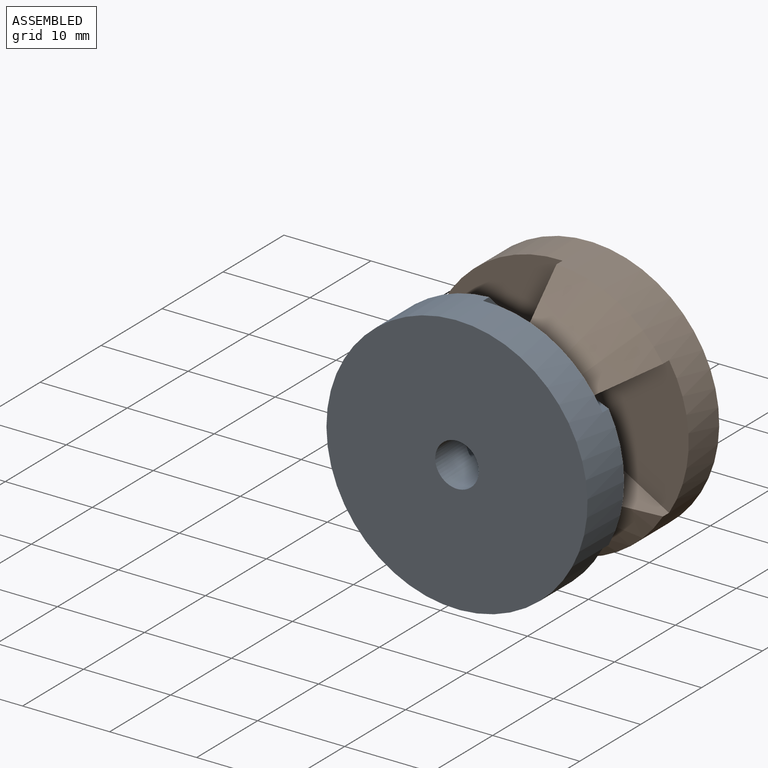
[diagram: assembled view]
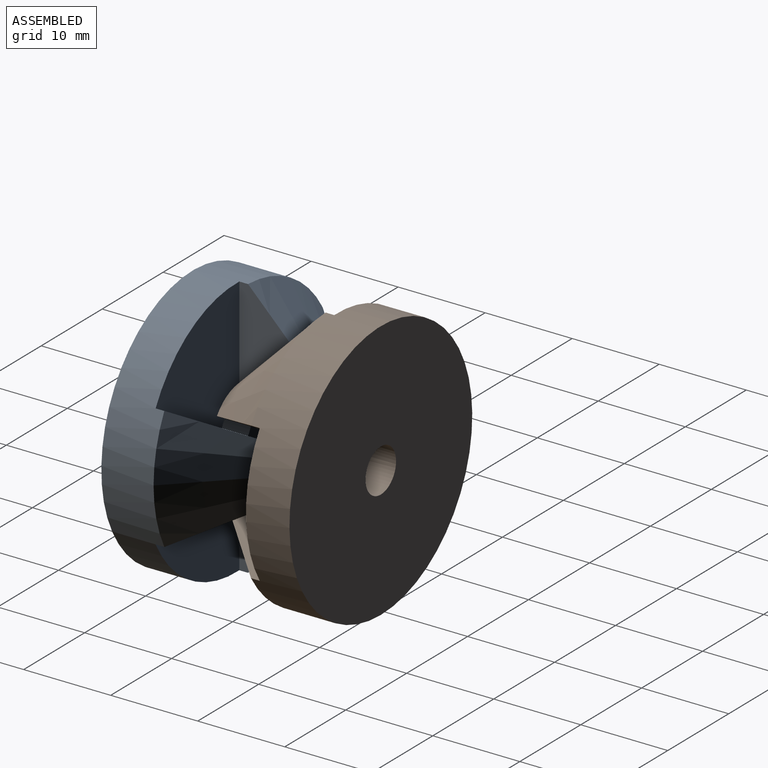
[diagram: assembled view, second angle]
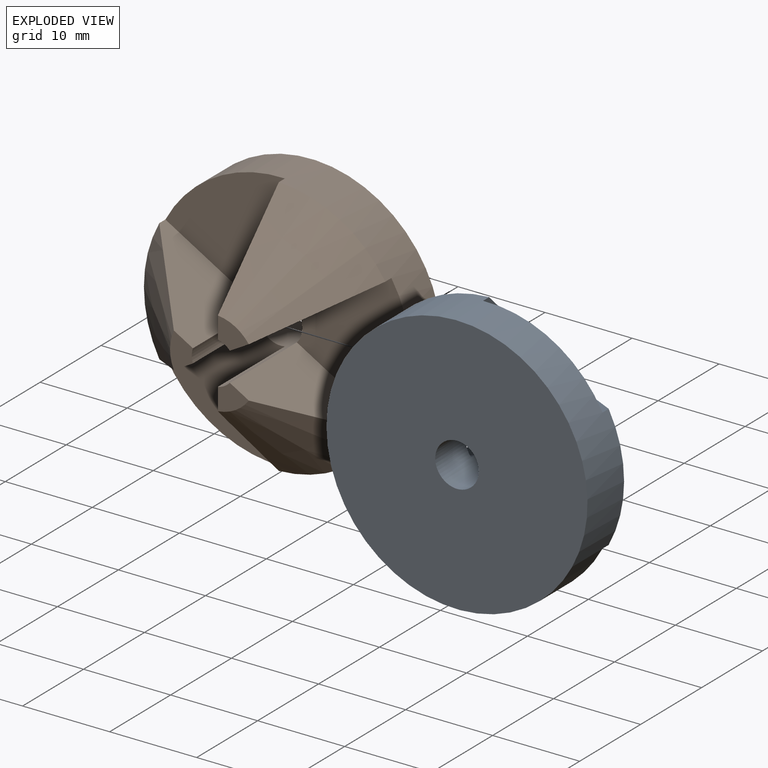
[diagram: exploded view]
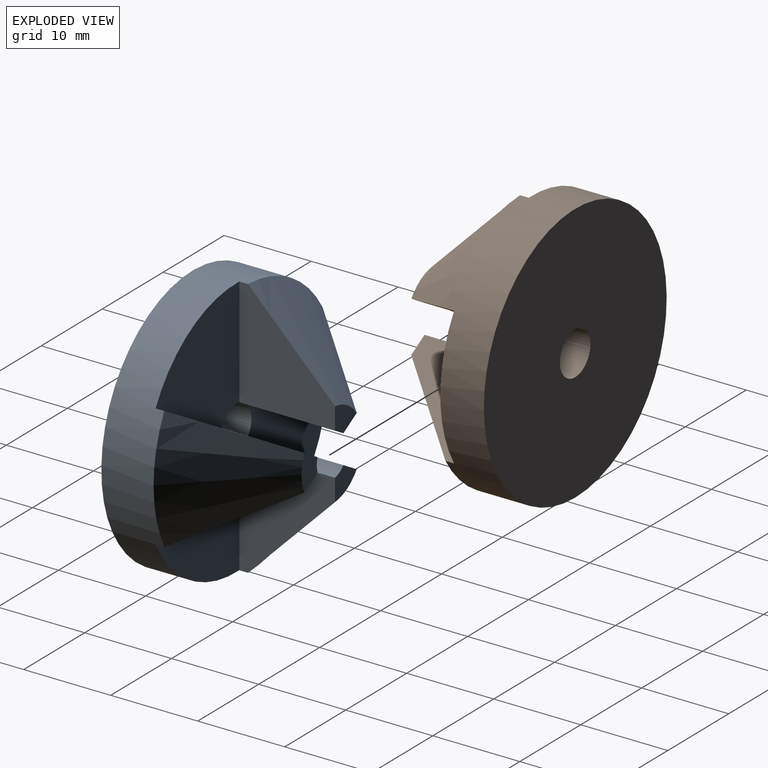
[diagram: exploded view, second angle]
ASSEMBLY  parts=2 mates=2
PART A: 18 faces, bbox 30.3x16.3x30.3 mm
  f0: plane 12.88x11.33mm, normal (-1,0,0), area 87.9mm2, adj f1,f3,f4,f5,f6
  f1: cylinder r=15mm len=30mm, axis (0,1,0), area 515.4mm2, adj f0,f2,f5,f6,f7,f8,f10,f11
  f2: plane 11.33x11.2mm, normal (0.5,0,0.87), area 87.9mm2, adj f1,f3,f4,f5,f11
  f3: cylinder r=2.5mm len=16mm, axis (0,1,0), area 131.7mm2, adj f0,f2,f4,f6,f7,f8,f9,f11
  f4: plane 3.56x3.32mm, normal (0,-1,0), area 7.3mm2, adj f0,f2,f3,f5
  f5: cone r=5mm half-angle=45deg, axis (0,1,0), area 130.8mm2, adj f0,f1,f2,f4
  f6: plane 14.21x13.73mm, normal (0,-1,0), area 127.1mm2, adj f0,f1,f3,f15
  f7: plane 11.33x11.2mm, normal (0.5,0,-0.87), area 87.9mm2, adj f1,f3,f9,f10,f11
  f8: plane 12.88x11.33mm, normal (-1,0,0), area 87.9mm2, adj f1,f3,f9,f10,f12
  f9: plane 3.56x3.32mm, normal (0,-1,0), area 7.3mm2, adj f3,f7,f8,f10
  f10: cone r=5mm half-angle=45deg, axis (0,1,0), area 130.8mm2, adj f1,f7,f8,f9
  f11: plane 15.86x13.13mm, normal (0,-1,0), area 127.1mm2, adj f1,f2,f3,f7
  f12: plane 14.21x13.73mm, normal (0,-1,0), area 127.1mm2, adj f1,f3,f8,f14
  f13: plane 30x30mm, normal (0,1,0), area 687.2mm2, adj f1,f3
  f14: plane 11.33x11.2mm, normal (0.5,0,0.87), area 87.9mm2, adj f1,f3,f12,f16,f17
  f15: plane 11.33x11.2mm, normal (0.5,0,-0.87), area 87.9mm2, adj f1,f3,f6,f16,f17
  f16: plane 4.11x2.63mm, normal (0,-1,0), area 7.3mm2, adj f3,f14,f15,f17
  f17: cone r=5mm half-angle=45deg, axis (0,1,0), area 130.8mm2, adj f1,f14,f15,f16
PART B: same geometry as A
PLACE A rot(axis=(-0.87,0,-0.5),180deg) t=(2.02,-5.16,-7.08)mm
PLACE B t=(2.02,6.45,-7.08)mm fixed
MATE parallel A.f14 <-> B.f0  axis (1,0,0) through (1.52,-4.16,-22.07)mm
MATE cylindrical B.f3 <-> A.f3  axis (0,1,0) through (2.02,3.45,-7.08)mm
